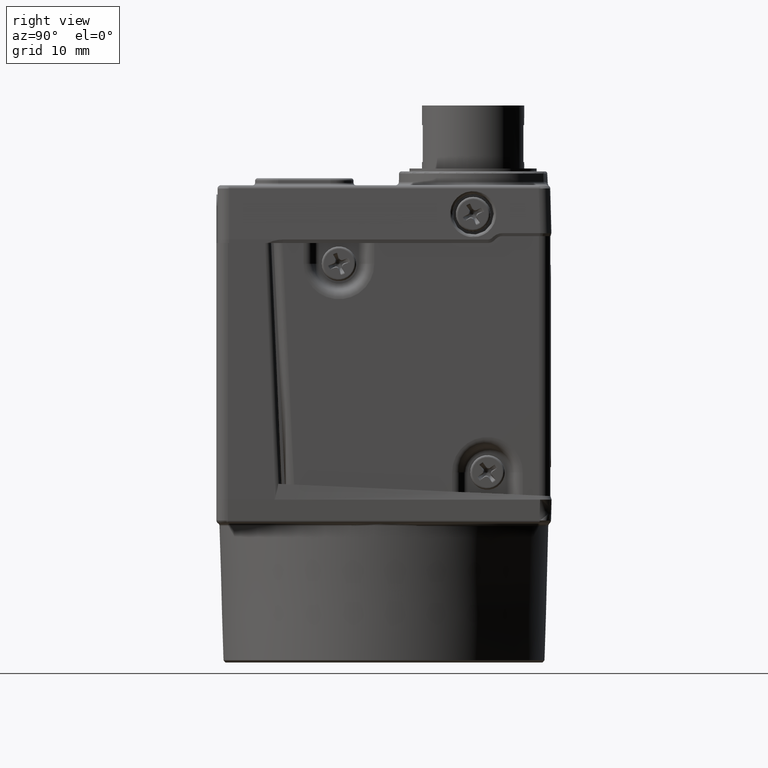
[diagram: clean part render]
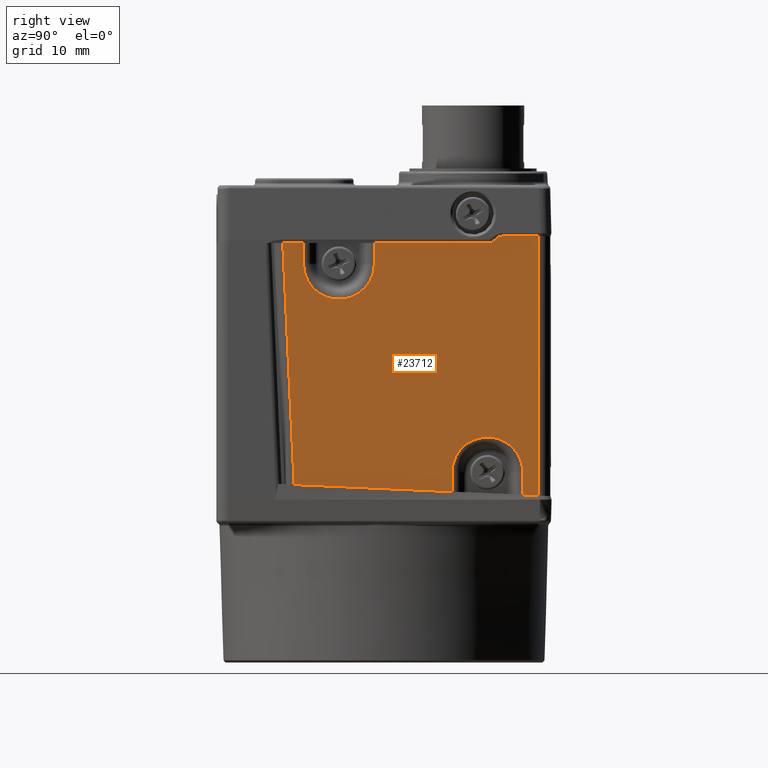
[diagram: same view with one face highlighted and labeled with its STEP entity id]
A machine part, right view. The second image highlights one B-rep face of the part: STEP entity #23712.
In plain terms, the highlighted planar face has unit normal (1, 0, 0).
Its self-contained STEP definition (entity closure, byte-faithful):
#20722=CARTESIAN_POINT('',(14.400000000267257,-8.724999999999771,36.299999999999912));
#20723=VERTEX_POINT('',#20722);
#20745=CARTESIAN_POINT('',(14.400000000266564,10.250000000000236,36.899999999999885));
#20746=VERTEX_POINT('',#20745);
#20747=CARTESIAN_POINT('',(14.400000000266582,9.684314575051001,36.665685424949125));
#20748=VERTEX_POINT('',#20747);
#20749=CARTESIAN_POINT('',(14.399999999999981,10.250000000000234,36.099999999999888));
#20750=DIRECTION('',(1.0,2.017301E-014,-2.017301E-014));
#20751=DIRECTION('',(2.852894E-014,-0.707106781186545,0.707106781186550));
#20752=AXIS2_PLACEMENT_3D('',#20749,#20750,#20751);
#20753=CIRCLE('',#20752,0.799999999132305);
#20754=EDGE_CURVE('',#20746,#20748,#20753,.T.);
#20777=CARTESIAN_POINT('',(14.400000000266587,9.552943725152524,36.534314575050651));
#20778=VERTEX_POINT('',#20777);
#20779=CARTESIAN_POINT('',(14.400000000000004,9.684314575664560,36.665685424335571));
#20780=DIRECTION('',(2.868385E-014,-0.707106781186567,-0.707106781186528));
#20781=VECTOR('',#20780,0.185786437626907);
#20782=LINE('',#20779,#20781);
#20783=EDGE_CURVE('',#20748,#20778,#20782,.T.);
#20801=CARTESIAN_POINT('',(14.400000000266608,8.987258300203285,36.299999999999891));
#20802=VERTEX_POINT('',#20801);
#20803=CARTESIAN_POINT('',(14.400000000000032,8.987258300203285,37.099999999999888));
#20804=DIRECTION('',(-1.0,-2.017301E-014,2.017301E-014));
#20805=DIRECTION('',(2.852894E-014,-0.707106781186547,0.707106781186548));
#20806=AXIS2_PLACEMENT_3D('',#20803,#20804,#20805);
#20807=CIRCLE('',#20806,0.800000000867687);
#20808=EDGE_CURVE('',#20778,#20802,#20807,.T.);
#20826=CARTESIAN_POINT('',(14.400000000000141,-0.831902001999484,36.299999999999940));
#20827=VERTEX_POINT('',#20826);
#20828=CARTESIAN_POINT('',(14.400000000266608,8.987258300203285,36.299999999999883));
#20829=DIRECTION('',(0.0,-1.0,0.0));
#20830=VECTOR('',#20829,9.819160302202768);
#20831=LINE('',#20828,#20830);
#20832=EDGE_CURVE('',#20802,#20827,#20831,.T.);
#20837=CARTESIAN_POINT('',(14.400000000000141,-6.968097998001097,36.299999999999940));
#20838=VERTEX_POINT('',#20837);
#20839=CARTESIAN_POINT('',(14.400000000267193,-6.968097998001097,36.299999999999905));
#20840=DIRECTION('',(0.0,-1.0,0.0));
#20841=VECTOR('',#20840,1.756902001998672);
#20842=LINE('',#20839,#20841);
#20843=EDGE_CURVE('',#20838,#20723,#20842,.T.);
#20939=CARTESIAN_POINT('',(14.400000000000146,13.399999999999707,36.899999999999899));
#20940=VERTEX_POINT('',#20939);
#20941=CARTESIAN_POINT('',(14.399999999999869,13.399999999999707,36.899999999132170));
#20942=DIRECTION('',(0.0,-1.0,0.0));
#20943=VECTOR('',#20942,3.149999999999471);
#20944=LINE('',#20941,#20943);
#20945=EDGE_CURVE('',#20940,#20746,#20944,.T.);
#23612=CARTESIAN_POINT('',(14.399999999999993,10.007103870035770,36.458071353990455));
#23613=DIRECTION('',(1.0,0.0,0.0));
#23614=DIRECTION('',(0.0,0.0,-1.0));
#23615=AXIS2_PLACEMENT_3D('',#23612,#23613,#23614);
#23616=PLANE('',#23615);
#23617=ORIENTED_EDGE('',*,*,#20945,.T.);
#23618=ORIENTED_EDGE('',*,*,#20754,.T.);
#23619=ORIENTED_EDGE('',*,*,#20783,.T.);
#23620=ORIENTED_EDGE('',*,*,#20808,.T.);
#23621=ORIENTED_EDGE('',*,*,#20832,.T.);
#23622=CARTESIAN_POINT('',(14.400000000000135,-0.831902001999487,34.499999999999929));
#23623=VERTEX_POINT('',#23622);
#23624=CARTESIAN_POINT('',(14.400000000000135,-0.831902001999487,34.499999999999929));
#23625=DIRECTION('',(0.0,0.0,1.0));
#23626=VECTOR('',#23625,1.800000000000011);
#23627=LINE('',#23624,#23626);
#23628=EDGE_CURVE('',#23623,#20827,#23627,.T.);
#23629=ORIENTED_EDGE('',*,*,#23628,.F.);
#23630=CARTESIAN_POINT('',(14.400000000000135,-6.968097998001101,34.499999999999936));
#23631=VERTEX_POINT('',#23630);
#23632=CARTESIAN_POINT('',(14.400000000000137,-3.900000000000292,34.499999999999936));
#23633=DIRECTION('',(1.0,0.0,0.0));
#23634=DIRECTION('',(0.0,0.0,-1.0));
#23635=AXIS2_PLACEMENT_3D('',#23632,#23633,#23634);
#23636=CIRCLE('',#23635,3.068097998000808);
#23637=EDGE_CURVE('',#23631,#23623,#23636,.T.);
#23638=ORIENTED_EDGE('',*,*,#23637,.F.);
#23639=CARTESIAN_POINT('',(14.400000000000142,-6.968097998001098,36.299999999999933));
#23640=DIRECTION('',(0.0,0.0,-1.0));
#23641=VECTOR('',#23640,1.800000000000004);
#23642=LINE('',#23639,#23641);
#23643=EDGE_CURVE('',#20838,#23631,#23642,.T.);
#23644=ORIENTED_EDGE('',*,*,#23643,.F.);
#23645=ORIENTED_EDGE('',*,*,#20843,.T.);
#23646=CARTESIAN_POINT('',(14.400000000000139,-8.758725162031302,36.299999999999940));
#23647=VERTEX_POINT('',#23646);
#23648=CARTESIAN_POINT('',(14.400000000000141,-8.758725162031304,36.300002030000016));
#23649=DIRECTION('',(0.0,1.0,0.0));
#23650=VECTOR('',#23649,0.033725162031534);
#23651=LINE('',#23648,#23650);
#23652=EDGE_CURVE('',#23647,#20723,#23651,.T.);
#23653=ORIENTED_EDGE('',*,*,#23652,.F.);
#23654=CARTESIAN_POINT('',(14.400000000000057,-7.774128464616760,15.398796689525494));
#23655=VERTEX_POINT('',#23654);
#23656=CARTESIAN_POINT('',(14.400000000000052,-7.774128464616760,15.398796689525494));
#23657=CARTESIAN_POINT('',(14.400000000000080,-8.102327363754940,22.365864459683639));
#23658=CARTESIAN_POINT('',(14.400000000000112,-8.430526262893123,29.332932229841791));
#23659=CARTESIAN_POINT('',(14.400000000000139,-8.758725162031302,36.299999999999940));
#23660=B_SPLINE_CURVE_WITH_KNOTS('',3,(#23656,#23657,#23658,#23659),.UNSPECIFIED.,.F.,.U.,(4,4),(0.087092983018387,1.0),.UNSPECIFIED.);
#23661=EDGE_CURVE('',#23655,#23647,#23660,.T.);
#23662=ORIENTED_EDGE('',*,*,#23661,.F.);
#23663=CARTESIAN_POINT('',(14.400000000000059,5.881902001998881,14.786629806539276));
#23664=VERTEX_POINT('',#23663);
#23665=CARTESIAN_POINT('',(14.400000000000158,5.881902001998885,14.786629806539370));
#23666=DIRECTION('',(3.664535E-014,-0.998996755528701,0.044782613178873));
#23667=VECTOR('',#23666,13.669744562271809);
#23668=LINE('',#23665,#23667);
#23669=EDGE_CURVE('',#23664,#23655,#23668,.T.);
#23670=ORIENTED_EDGE('',*,*,#23669,.F.);
#23671=CARTESIAN_POINT('',(14.400000000000066,5.881902001998881,16.450902032609470));
#23672=VERTEX_POINT('',#23671);
#23673=CARTESIAN_POINT('',(14.400000000000064,5.881902001998881,16.450902032609470));
#23674=DIRECTION('',(0.0,0.0,-1.0));
#23675=VECTOR('',#23674,1.664272226070196);
#23676=LINE('',#23673,#23675);
#23677=EDGE_CURVE('',#23672,#23664,#23676,.T.);
#23678=ORIENTED_EDGE('',*,*,#23677,.F.);
#23679=CARTESIAN_POINT('',(14.400000000000068,12.018097998000496,16.450902032609470));
#23680=VERTEX_POINT('',#23679);
#23681=CARTESIAN_POINT('',(14.400000000000068,8.949999999999688,16.450902032609470));
#23682=DIRECTION('',(1.0,0.0,0.0));
#23683=DIRECTION('',(0.0,0.0,1.0));
#23684=AXIS2_PLACEMENT_3D('',#23681,#23682,#23683);
#23685=CIRCLE('',#23684,3.068097998000808);
#23686=EDGE_CURVE('',#23680,#23672,#23685,.T.);
#23687=ORIENTED_EDGE('',*,*,#23686,.F.);
#23688=CARTESIAN_POINT('',(14.400000000000059,12.018097998000494,14.511558951546098));
#23689=VERTEX_POINT('',#23688);
#23690=CARTESIAN_POINT('',(14.400000000000059,12.018097998000494,14.511558951546098));
#23691=DIRECTION('',(0.0,0.0,1.0));
#23692=VECTOR('',#23691,1.939343081063372);
#23693=LINE('',#23690,#23692);
#23694=EDGE_CURVE('',#23689,#23680,#23693,.T.);
#23695=ORIENTED_EDGE('',*,*,#23694,.F.);
#23696=CARTESIAN_POINT('',(14.400000000000059,13.399999999999682,14.449611620421996));
#23697=VERTEX_POINT('',#23696);
#23698=CARTESIAN_POINT('',(14.399999999999881,13.399999999999684,14.449611620422091));
#23699=DIRECTION('',(3.724046E-014,-0.998996755528701,0.044782613178874));
#23700=VECTOR('',#23699,1.383289779822995);
#23701=LINE('',#23698,#23700);
#23702=EDGE_CURVE('',#23697,#23689,#23701,.T.);
#23703=ORIENTED_EDGE('',*,*,#23702,.F.);
#23704=CARTESIAN_POINT('',(14.400000000000063,13.399999999999704,14.449611620421997));
#23705=DIRECTION('',(0.0,0.0,1.0));
#23706=VECTOR('',#23705,22.450388379577902);
#23707=LINE('',#23704,#23706);
#23708=EDGE_CURVE('',#23697,#20940,#23707,.T.);
#23709=ORIENTED_EDGE('',*,*,#23708,.T.);
#23710=EDGE_LOOP('',(#23617,#23618,#23619,#23620,#23621,#23629,#23638,#23644,#23645,#23653,#23662,#23670,#23678,#23687,#23695,#23703,#23709));
#23711=FACE_OUTER_BOUND('',#23710,.T.);
#23712=ADVANCED_FACE('',(#23711),#23616,.T.);